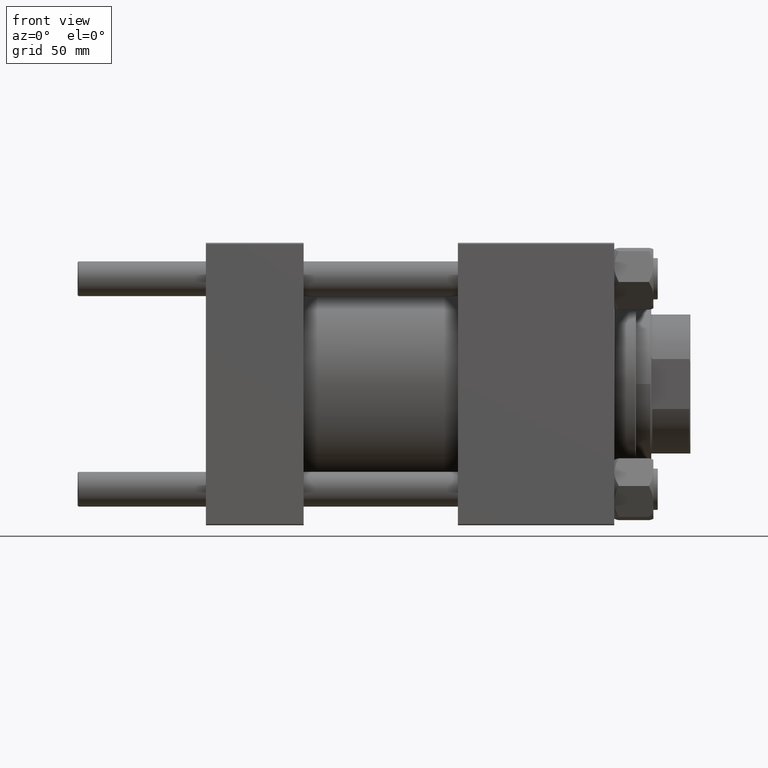
[diagram: clean part render]
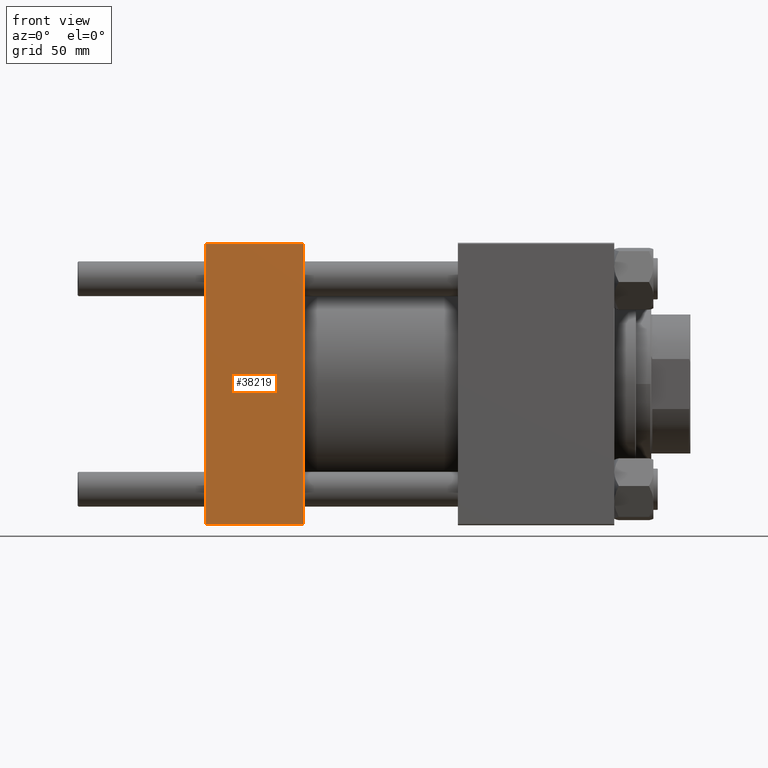
[diagram: same view with one face highlighted and labeled with its STEP entity id]
A machine part, front view. The second image highlights one B-rep face of the part: STEP entity #38219.
In plain terms, the highlighted planar face has unit normal (0, 1, 0).
Its self-contained STEP definition (entity closure, byte-faithful):
#675 = LINE ( 'NONE', #16253, #14009 ) ;
#2147 = CARTESIAN_POINT ( 'NONE',  ( 0.000000000000000000, -65.00000000000000000, 64.50000000000000000 ) ) ;
#4828 = VECTOR ( 'NONE', #45564, 1000.000000000000000 ) ;
#5500 = VERTEX_POINT ( 'NONE', #25531 ) ;
#6780 = CARTESIAN_POINT ( 'NONE',  ( 45.00000000000000000, -65.00000000000000000, 65.00000000000000000 ) ) ;
#6888 = ORIENTED_EDGE ( 'NONE', *, *, #32000, .T. ) ;
#9270 = ORIENTED_EDGE ( 'NONE', *, *, #45562, .T. ) ;
#9679 = LINE ( 'NONE', #37238, #37969 ) ;
#10754 = DIRECTION ( 'NONE',  ( -0.000000000000000000, 1.000000000000000000, 0.000000000000000000 ) ) ;
#13418 = AXIS2_PLACEMENT_3D ( 'NONE', #25800, #10754, #37558 ) ;
#13661 = EDGE_CURVE ( 'NONE', #32748, #45425, #41234, .T. ) ;
#14009 = VECTOR ( 'NONE', #28214, 1000.000000000000000 ) ;
#15000 = CARTESIAN_POINT ( 'NONE',  ( 45.00000000000000000, -65.00000000000000000, 64.50000000000000000 ) ) ;
#15285 = VERTEX_POINT ( 'NONE', #2147 ) ;
#16253 = CARTESIAN_POINT ( 'NONE',  ( 0.000000000000000000, -65.00000000000000000, 65.00000000000000000 ) ) ;
#17492 = LINE ( 'NONE', #36374, #24173 ) ;
#24173 = VECTOR ( 'NONE', #28699, 1000.000000000000000 ) ;
#25531 = CARTESIAN_POINT ( 'NONE',  ( 0.000000000000000000, -65.00000000000000000, -64.49999999999991473 ) ) ;
#25800 = CARTESIAN_POINT ( 'NONE',  ( 45.00000000000000000, -65.00000000000000000, 65.00000000000000000 ) ) ;
#25819 = ORIENTED_EDGE ( 'NONE', *, *, #13661, .F. ) ;
#26057 = FACE_OUTER_BOUND ( 'NONE', #27565, .T. ) ;
#27565 = EDGE_LOOP ( 'NONE', ( #6888, #34079, #25819, #9270 ) ) ;
#28214 = DIRECTION ( 'NONE',  ( 0.000000000000000000, 0.000000000000000000, -1.000000000000000000 ) ) ;
#28699 = DIRECTION ( 'NONE',  ( 1.000000000000000000, 0.000000000000000000, 0.000000000000000000 ) ) ;
#32000 = EDGE_CURVE ( 'NONE', #15285, #5500, #675, .T. ) ;
#32748 = VERTEX_POINT ( 'NONE', #15000 ) ;
#34079 = ORIENTED_EDGE ( 'NONE', *, *, #46997, .T. ) ;
#34108 = CARTESIAN_POINT ( 'NONE',  ( 45.00000000000000000, -65.00000000000000000, -64.49999999999991473 ) ) ;
#36374 = CARTESIAN_POINT ( 'NONE',  ( 45.00000000000000000, -65.00000000000000000, -64.49999999999991473 ) ) ;
#37238 = CARTESIAN_POINT ( 'NONE',  ( 45.00000000000000000, -65.00000000000000000, 64.50000000000000000 ) ) ;
#37558 = DIRECTION ( 'NONE',  ( 0.000000000000000000, -0.000000000000000000, 1.000000000000000000 ) ) ;
#37969 = VECTOR ( 'NONE', #44632, 1000.000000000000000 ) ;
#38219 = ADVANCED_FACE ( 'NONE', ( #26057 ), #42382, .F. ) ;
#41234 = LINE ( 'NONE', #6780, #4828 ) ;
#42382 = PLANE ( 'NONE',  #13418 ) ;
#44632 = DIRECTION ( 'NONE',  ( -1.000000000000000000, 0.000000000000000000, 0.000000000000000000 ) ) ;
#45425 = VERTEX_POINT ( 'NONE', #34108 ) ;
#45562 = EDGE_CURVE ( 'NONE', #32748, #15285, #9679, .T. ) ;
#45564 = DIRECTION ( 'NONE',  ( 0.000000000000000000, 0.000000000000000000, -1.000000000000000000 ) ) ;
#46997 = EDGE_CURVE ( 'NONE', #5500, #45425, #17492, .T. ) ;